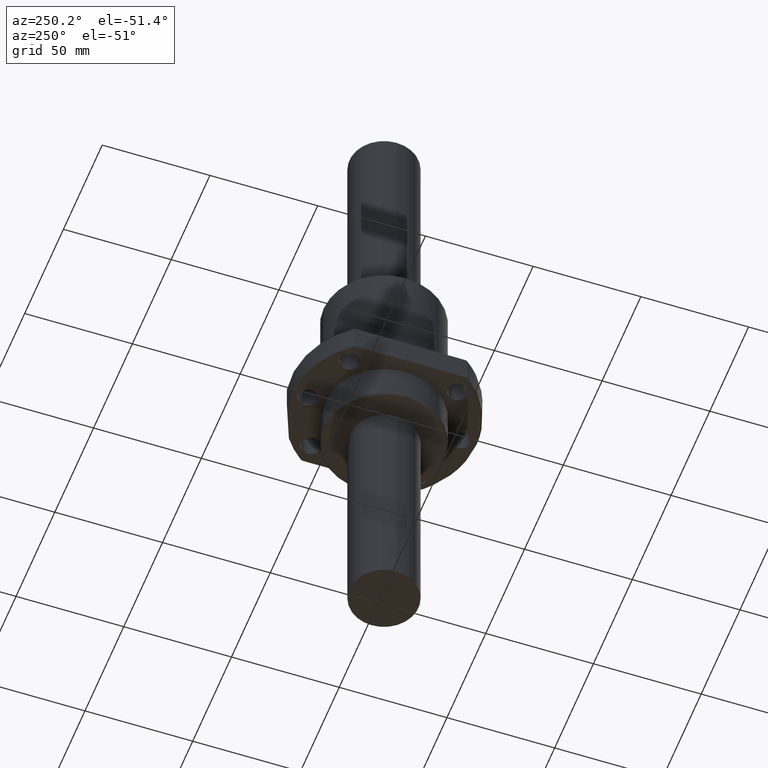
[diagram: clean part render]
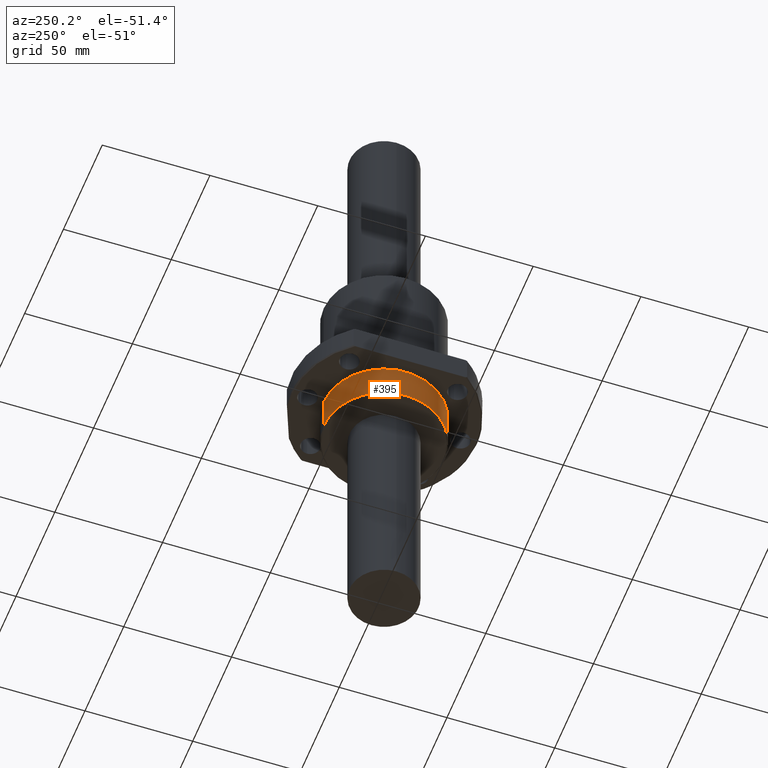
[diagram: same view with one face highlighted and labeled with its STEP entity id]
A machine part, auxiliary view. The second image highlights one B-rep face of the part: STEP entity #395.
In plain terms, the highlighted cylindrical surface (partial cylindrical patch) has radius 28 mm, axis along (0, -0, -1).
Its self-contained STEP definition (entity closure, byte-faithful):
#22 = AXIS2_PLACEMENT_3D ( 'NONE', #1143, #1141, #1140 ) ;
#139 = DIRECTION ( 'NONE',  ( 0.0000000000000000000, -6.195441848567998200E-017, 1.000000000000000000 ) ) ;
#147 = ORIENTED_EDGE ( 'NONE', *, *, #2049, .T. ) ;
#154 = CARTESIAN_POINT ( 'NONE',  ( 3.429010560000337200E-015, 27.99999610000000100, -16.99999399999999700 ) ) ;
#179 = LINE ( 'NONE', #154, #1089 ) ;
#258 = ORIENTED_EDGE ( 'NONE', *, *, #1268, .F. ) ;
#278 = ORIENTED_EDGE ( 'NONE', *, *, #1275, .F. ) ;
#320 = EDGE_CURVE ( 'NONE', #1979, #471, #1848, .T. ) ;
#329 = VECTOR ( 'NONE', #1937, 1000.000000000000000 ) ;
#348 = DIRECTION ( 'NONE',  ( 1.000000000000000000, 0.0000000000000000000, 0.0000000000000000000 ) ) ;
#371 = VERTEX_POINT ( 'NONE', #1126 ) ;
#395 = ADVANCED_FACE ( 'NONE', ( #1774 ), #1668, .T. ) ;
#410 = CARTESIAN_POINT ( 'NONE',  ( 0.0000000000000000000, -27.99999610000000100, -0.5000000000000000000 ) ) ;
#471 = VERTEX_POINT ( 'NONE', #1006 ) ;
#531 = CARTESIAN_POINT ( 'NONE',  ( 0.0000000000000000000, -27.99999610000000100, -16.99999400000000400 ) ) ;
#598 = CIRCLE ( 'NONE', #636, 27.99999610000000100 ) ;
#636 = AXIS2_PLACEMENT_3D ( 'NONE', #1770, #1359, #717 ) ;
#642 = CARTESIAN_POINT ( 'NONE',  ( 0.0000000000000000000, -27.99999610000000100, -16.99999400000000400 ) ) ;
#717 = DIRECTION ( 'NONE',  ( 1.000000000000000000, 0.0000000000000000000, 0.0000000000000000000 ) ) ;
#740 = LINE ( 'NONE', #531, #329 ) ;
#746 = ORIENTED_EDGE ( 'NONE', *, *, #1436, .F. ) ;
#769 = DIRECTION ( 'NONE',  ( 0.0000000000000000000, 0.0000000000000000000, 1.000000000000000000 ) ) ;
#843 = VERTEX_POINT ( 'NONE', #410 ) ;
#1006 = CARTESIAN_POINT ( 'NONE',  ( 3.429010560000337200E-015, 27.99999610000000100, -16.99999399999999700 ) ) ;
#1084 = DIRECTION ( 'NONE',  ( 0.0000000000000000000, -1.000000000000000000, -1.239088369713599400E-016 ) ) ;
#1085 = DIRECTION ( 'NONE',  ( 0.0000000000000000000, -6.195441848567998200E-017, 1.000000000000000000 ) ) ;
#1089 = VECTOR ( 'NONE', #139, 1000.000000000000000 ) ;
#1099 = CARTESIAN_POINT ( 'NONE',  ( 0.0000000000000000000, 0.0000000000000000000, -16.99999400000000100 ) ) ;
#1126 = CARTESIAN_POINT ( 'NONE',  ( 3.429010560000337200E-015, 27.99999610000000100, -0.5000000000000000000 ) ) ;
#1140 = DIRECTION ( 'NONE',  ( 0.0000000000000000000, -1.000000000000000000, -1.239088369713599400E-016 ) ) ;
#1141 = DIRECTION ( 'NONE',  ( 0.0000000000000000000, -6.195441848567998200E-017, 1.000000000000000000 ) ) ;
#1143 = CARTESIAN_POINT ( 'NONE',  ( 0.0000000000000000000, -4.408648322478731700E-041, -16.99999400000000100 ) ) ;
#1268 = EDGE_CURVE ( 'NONE', #843, #1729, #2014, .T. ) ;
#1275 = EDGE_CURVE ( 'NONE', #1729, #371, #598, .T. ) ;
#1359 = DIRECTION ( 'NONE',  ( 0.0000000000000000000, 0.0000000000000000000, 1.000000000000000000 ) ) ;
#1413 = CARTESIAN_POINT ( 'NONE',  ( 0.0000000000000000000, 0.0000000000000000000, -0.5000000000000000000 ) ) ;
#1436 = EDGE_CURVE ( 'NONE', #1979, #843, #740, .T. ) ;
#1485 = ORIENTED_EDGE ( 'NONE', *, *, #320, .T. ) ;
#1597 = CARTESIAN_POINT ( 'NONE',  ( 27.99999610000000100, 3.429010560000337200E-015, -0.5000000000000000000 ) ) ;
#1668 = CYLINDRICAL_SURFACE ( 'NONE', #1875, 27.99999610000000100 ) ;
#1729 = VERTEX_POINT ( 'NONE', #1597 ) ;
#1748 = AXIS2_PLACEMENT_3D ( 'NONE', #1413, #769, #348 ) ;
#1770 = CARTESIAN_POINT ( 'NONE',  ( 0.0000000000000000000, 0.0000000000000000000, -0.5000000000000000000 ) ) ;
#1774 = FACE_OUTER_BOUND ( 'NONE', #1956, .T. ) ;
#1848 = CIRCLE ( 'NONE', #22, 27.99999610000000100 ) ;
#1875 = AXIS2_PLACEMENT_3D ( 'NONE', #1099, #1085, #1084 ) ;
#1937 = DIRECTION ( 'NONE',  ( 0.0000000000000000000, -6.195441848567998200E-017, 1.000000000000000000 ) ) ;
#1956 = EDGE_LOOP ( 'NONE', ( #1485, #147, #278, #258, #746 ) ) ;
#1979 = VERTEX_POINT ( 'NONE', #642 ) ;
#2014 = CIRCLE ( 'NONE', #1748, 27.99999610000000100 ) ;
#2049 = EDGE_CURVE ( 'NONE', #471, #371, #179, .T. ) ;